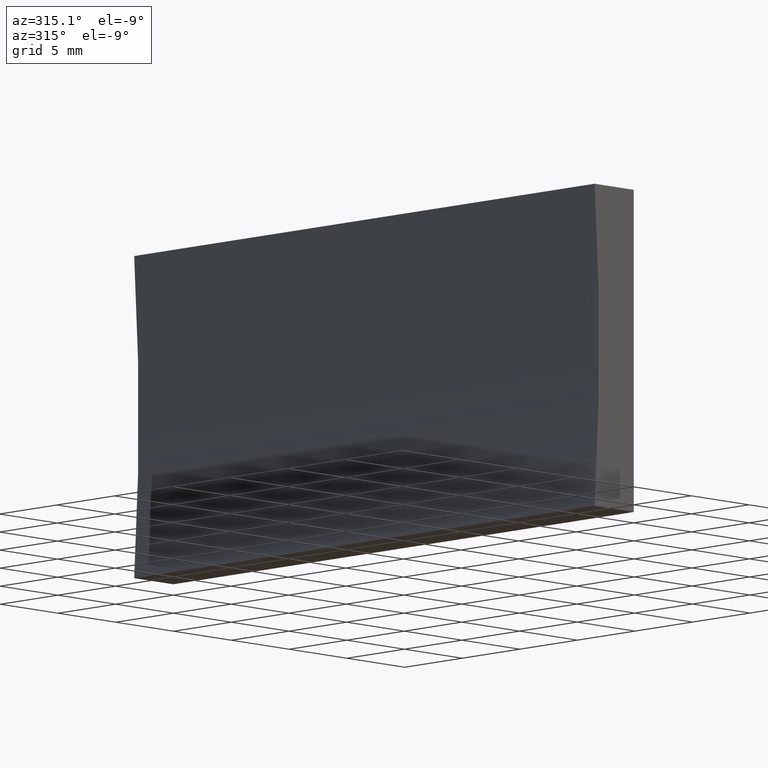
[diagram: clean part render]
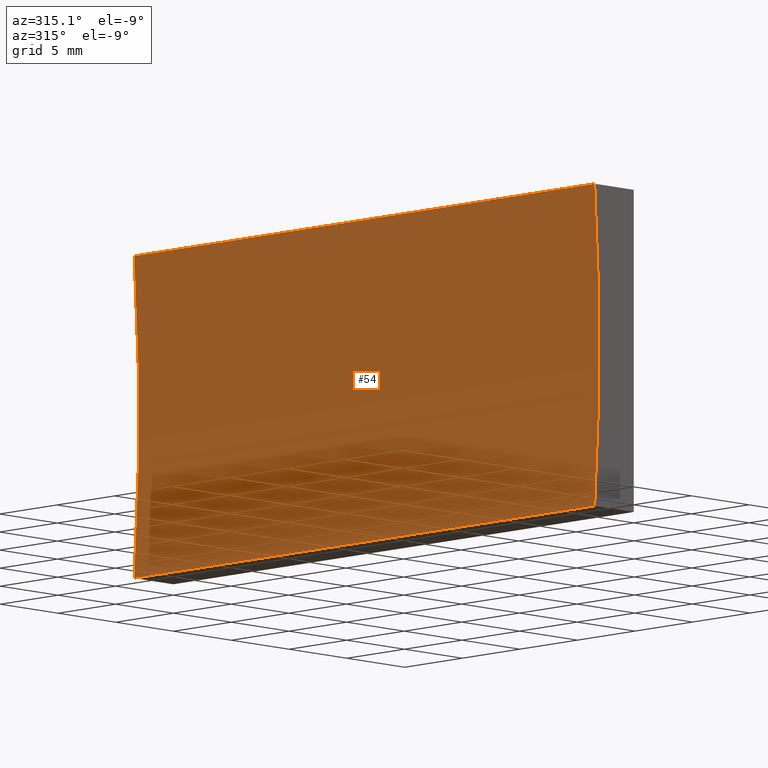
[diagram: same view with one face highlighted and labeled with its STEP entity id]
A machine part, auxiliary view. The second image highlights one B-rep face of the part: STEP entity #54.
In plain terms, the highlighted cylindrical surface (partial cylindrical patch) has radius 129.25 mm, axis along (-0, -1, -0).
Its self-contained STEP definition (entity closure, byte-faithful):
#1 = CARTESIAN_POINT ( 'NONE',  ( -3.387427854322250000, 40.00000000000000000, 1.214306433183765000E-014 ) ) ;
#9 = CARTESIAN_POINT ( 'NONE',  ( -132.2500000000000000, 40.00000000000000000, 10.00000000000001600 ) ) ;
#10 = CIRCLE ( 'NONE', #23, 129.2500000000000000 ) ;
#11 = DIRECTION ( 'NONE',  ( -0.0000000000000000000, -1.000000000000000000, -0.0000000000000000000 ) ) ;
#23 = AXIS2_PLACEMENT_3D ( 'NONE', #9, #11, #104 ) ;
#33 = VECTOR ( 'NONE', #164, 1000.000000000000000 ) ;
#36 = EDGE_CURVE ( 'NONE', #122, #149, #158, .T. ) ;
#39 = CARTESIAN_POINT ( 'NONE',  ( -3.387427854322250000, 40.00000000000000000, 1.214306433183765000E-014 ) ) ;
#44 = EDGE_LOOP ( 'NONE', ( #88, #70, #47, #90 ) ) ;
#47 = ORIENTED_EDGE ( 'NONE', *, *, #146, .F. ) ;
#48 = AXIS2_PLACEMENT_3D ( 'NONE', #187, #199, #125 ) ;
#52 = CYLINDRICAL_SURFACE ( 'NONE', #186, 129.2500000000000000 ) ;
#54 = ADVANCED_FACE ( 'NONE', ( #98 ), #52, .F. ) ;
#58 = VECTOR ( 'NONE', #141, 1000.000000000000000 ) ;
#67 = CARTESIAN_POINT ( 'NONE',  ( -132.2500000000000000, 40.00000000000000000, 10.00000000000001600 ) ) ;
#70 = ORIENTED_EDGE ( 'NONE', *, *, #36, .F. ) ;
#83 = CIRCLE ( 'NONE', #48, 129.2500000000000000 ) ;
#88 = ORIENTED_EDGE ( 'NONE', *, *, #156, .T. ) ;
#90 = ORIENTED_EDGE ( 'NONE', *, *, #96, .T. ) ;
#94 = CARTESIAN_POINT ( 'NONE',  ( -3.387427854322250000, 0.0000000000000000000, 1.214306433183765000E-014 ) ) ;
#96 = EDGE_CURVE ( 'NONE', #106, #112, #165, .T. ) ;
#98 = FACE_OUTER_BOUND ( 'NONE', #44, .T. ) ;
#104 = DIRECTION ( 'NONE',  ( 0.0000000000000000000, 0.0000000000000000000, 1.000000000000000000 ) ) ;
#106 = VERTEX_POINT ( 'NONE', #1 ) ;
#112 = VERTEX_POINT ( 'NONE', #94 ) ;
#120 = CARTESIAN_POINT ( 'NONE',  ( -3.387427854322250500, 0.0000000000000000000, 20.00000000000000000 ) ) ;
#122 = VERTEX_POINT ( 'NONE', #133 ) ;
#125 = DIRECTION ( 'NONE',  ( 0.0000000000000000000, 0.0000000000000000000, 1.000000000000000000 ) ) ;
#133 = CARTESIAN_POINT ( 'NONE',  ( -3.387427854322250500, 40.00000000000000000, 20.00000000000000000 ) ) ;
#141 = DIRECTION ( 'NONE',  ( -0.0000000000000000000, -1.000000000000000000, -0.0000000000000000000 ) ) ;
#146 = EDGE_CURVE ( 'NONE', #106, #122, #10, .T. ) ;
#149 = VERTEX_POINT ( 'NONE', #120 ) ;
#156 = EDGE_CURVE ( 'NONE', #112, #149, #83, .T. ) ;
#158 = LINE ( 'NONE', #167, #33 ) ;
#164 = DIRECTION ( 'NONE',  ( -0.0000000000000000000, -1.000000000000000000, -0.0000000000000000000 ) ) ;
#165 = LINE ( 'NONE', #39, #58 ) ;
#167 = CARTESIAN_POINT ( 'NONE',  ( -3.387427854322250500, 40.00000000000000000, 20.00000000000000000 ) ) ;
#182 = DIRECTION ( 'NONE',  ( 0.0000000000000000000, 0.0000000000000000000, -1.000000000000000000 ) ) ;
#186 = AXIS2_PLACEMENT_3D ( 'NONE', #67, #190, #182 ) ;
#187 = CARTESIAN_POINT ( 'NONE',  ( -132.2500000000000000, 0.0000000000000000000, 10.00000000000001600 ) ) ;
#190 = DIRECTION ( 'NONE',  ( -0.0000000000000000000, -1.000000000000000000, -0.0000000000000000000 ) ) ;
#199 = DIRECTION ( 'NONE',  ( -0.0000000000000000000, -1.000000000000000000, -0.0000000000000000000 ) ) ;